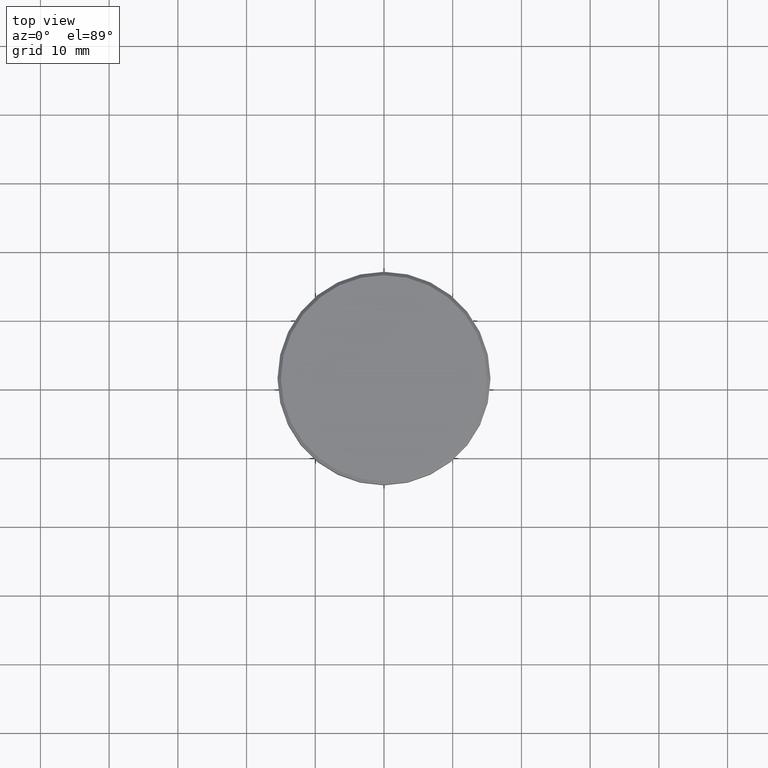
[diagram: clean part render]
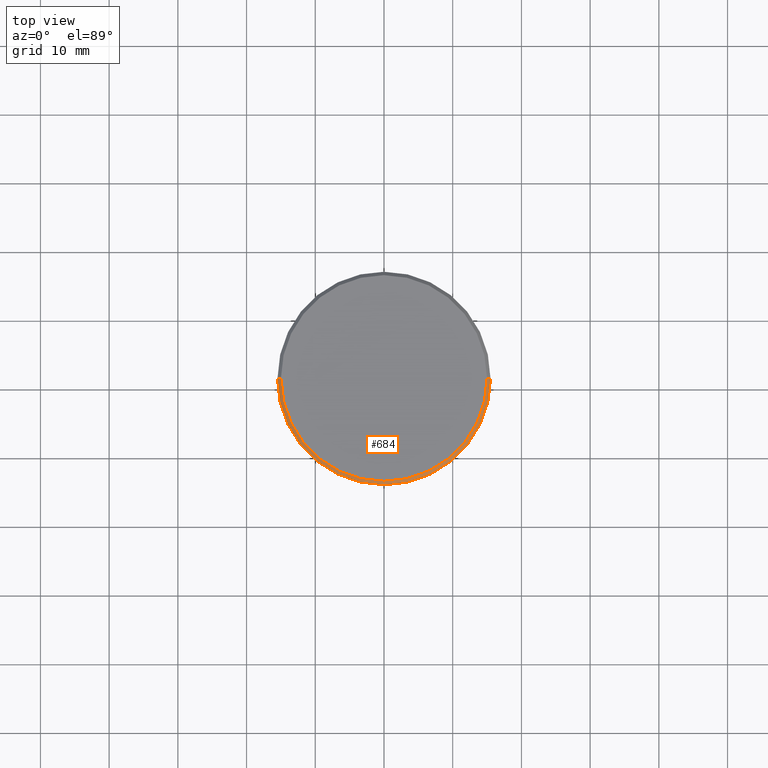
[diagram: same view with one face highlighted and labeled with its STEP entity id]
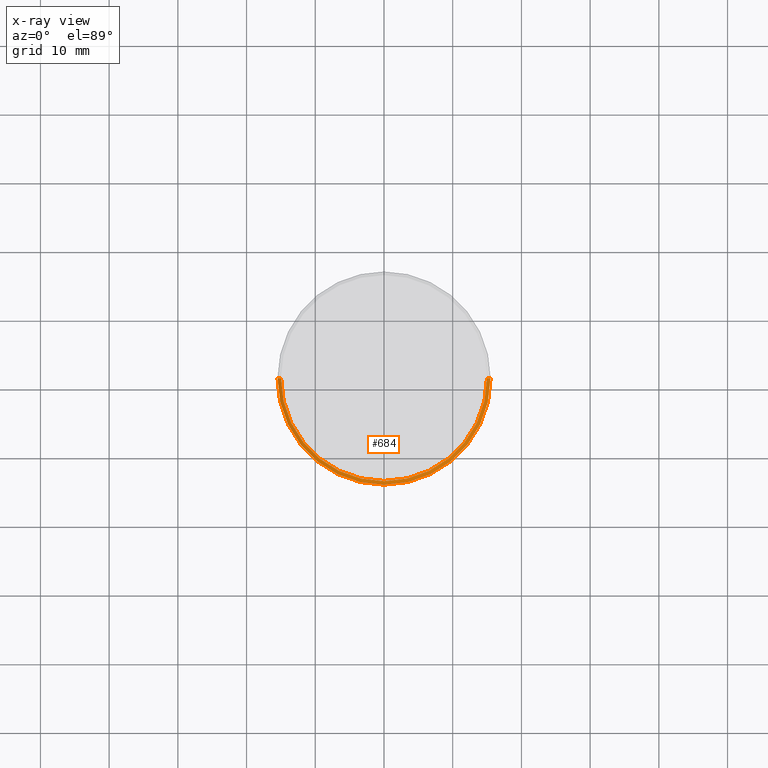
[diagram: x-ray of the same camera — body ghosted, the highlighted face saturated]
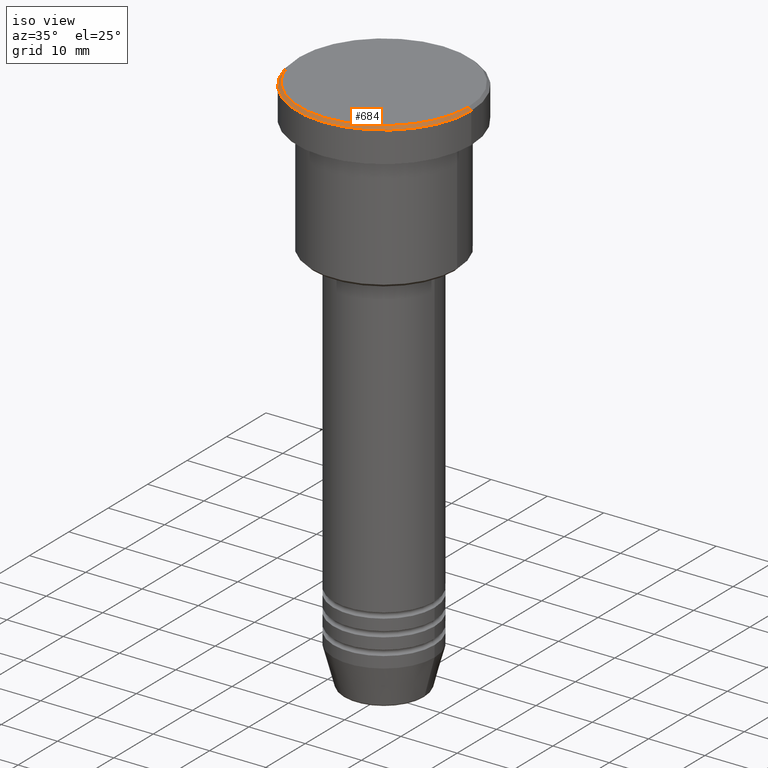
[diagram: same view with one face highlighted and labeled with its STEP entity id]
A machine part, top view. The second image highlights one B-rep face of the part: STEP entity #684.
The next image is the same camera in x-ray: the body ghosted, the highlighted face saturated — about 0% of this face is hidden behind the body in this view.
A second angle (iso view) of the same face is appended — the face is thin or edge-on in the first view.
In plain terms, the highlighted conical surface has half-angle 45 deg.
Its self-contained STEP definition (entity closure, byte-faithful):
#32 = CARTESIAN_POINT ( 'NONE',  ( -15.00000000000001421, 0.000000000000000000, 0.000000000000000000 ) ) ;
#51 = EDGE_CURVE ( 'NONE', #419, #1075, #429, .T. ) ;
#73 = CONICAL_SURFACE ( 'NONE', #792, 15.00000000000001421, 0.7853981633974361776 ) ;
#84 = CARTESIAN_POINT ( 'NONE',  ( -15.00000000000001421, 0.000000000000000000, 0.000000000000000000 ) ) ;
#117 = CARTESIAN_POINT ( 'NONE',  ( 15.00000000000001421, 1.836970198721031561E-15, 0.000000000000000000 ) ) ;
#128 = DIRECTION ( 'NONE',  ( -0.7071067811865389130, 0.000000000000000000, -0.7071067811865561215 ) ) ;
#130 = EDGE_CURVE ( 'NONE', #419, #180, #897, .T. ) ;
#136 = VECTOR ( 'NONE', #128, 1000.000000000000000 ) ;
#179 = DIRECTION ( 'NONE',  ( 1.000000000000000000, 0.000000000000000000, 0.000000000000000000 ) ) ;
#180 = VERTEX_POINT ( 'NONE', #852 ) ;
#184 = EDGE_CURVE ( 'NONE', #1075, #766, #928, .T. ) ;
#238 = CARTESIAN_POINT ( 'NONE',  ( 0.000000000000000000, 0.000000000000000000, 0.000000000000000000 ) ) ;
#250 = CARTESIAN_POINT ( 'NONE',  ( 15.50000000000000000, 0.000000000000000000, -0.4999999999999987232 ) ) ;
#256 = AXIS2_PLACEMENT_3D ( 'NONE', #816, #1172, #179 ) ;
#273 = DIRECTION ( 'NONE',  ( -0.000000000000000000, -0.000000000000000000, 1.000000000000000000 ) ) ;
#372 = AXIS2_PLACEMENT_3D ( 'NONE', #445, #273, #991 ) ;
#385 = FACE_OUTER_BOUND ( 'NONE', #537, .T. ) ;
#394 = VECTOR ( 'NONE', #483, 1000.000000000000000 ) ;
#419 = VERTEX_POINT ( 'NONE', #32 ) ;
#429 = CIRCLE ( 'NONE', #372, 15.00000000000001421 ) ;
#445 = CARTESIAN_POINT ( 'NONE',  ( 0.000000000000000000, 0.000000000000000000, 0.000000000000000000 ) ) ;
#448 = ORIENTED_EDGE ( 'NONE', *, *, #51, .F. ) ;
#483 = DIRECTION ( 'NONE',  ( 0.7071067811865389130, 8.659560562354828088E-17, -0.7071067811865561215 ) ) ;
#509 = DIRECTION ( 'NONE',  ( -1.000000000000000000, 0.000000000000000000, 0.000000000000000000 ) ) ;
#517 = DIRECTION ( 'NONE',  ( 0.000000000000000000, 0.000000000000000000, -1.000000000000000000 ) ) ;
#537 = EDGE_LOOP ( 'NONE', ( #843, #448, #821, #616 ) ) ;
#553 = CIRCLE ( 'NONE', #256, 15.50000000000000000 ) ;
#600 = CARTESIAN_POINT ( 'NONE',  ( 15.00000000000001421, 1.867586368699714559E-15, 0.000000000000000000 ) ) ;
#616 = ORIENTED_EDGE ( 'NONE', *, *, #620, .F. ) ;
#620 = EDGE_CURVE ( 'NONE', #766, #180, #553, .T. ) ;
#684 = ADVANCED_FACE ( 'NONE', ( #385 ), #73, .T. ) ;
#766 = VERTEX_POINT ( 'NONE', #250 ) ;
#792 = AXIS2_PLACEMENT_3D ( 'NONE', #238, #517, #509 ) ;
#816 = CARTESIAN_POINT ( 'NONE',  ( 0.000000000000000000, 0.000000000000000000, -0.4999999999999987232 ) ) ;
#821 = ORIENTED_EDGE ( 'NONE', *, *, #130, .T. ) ;
#843 = ORIENTED_EDGE ( 'NONE', *, *, #184, .F. ) ;
#852 = CARTESIAN_POINT ( 'NONE',  ( -15.50000000000000000, 1.898202538678397557E-15, -0.4999999999999987232 ) ) ;
#897 = LINE ( 'NONE', #84, #136 ) ;
#928 = LINE ( 'NONE', #117, #394 ) ;
#991 = DIRECTION ( 'NONE',  ( 1.000000000000000000, 0.000000000000000000, 0.000000000000000000 ) ) ;
#1075 = VERTEX_POINT ( 'NONE', #600 ) ;
#1172 = DIRECTION ( 'NONE',  ( 0.000000000000000000, 0.000000000000000000, -1.000000000000000000 ) ) ;